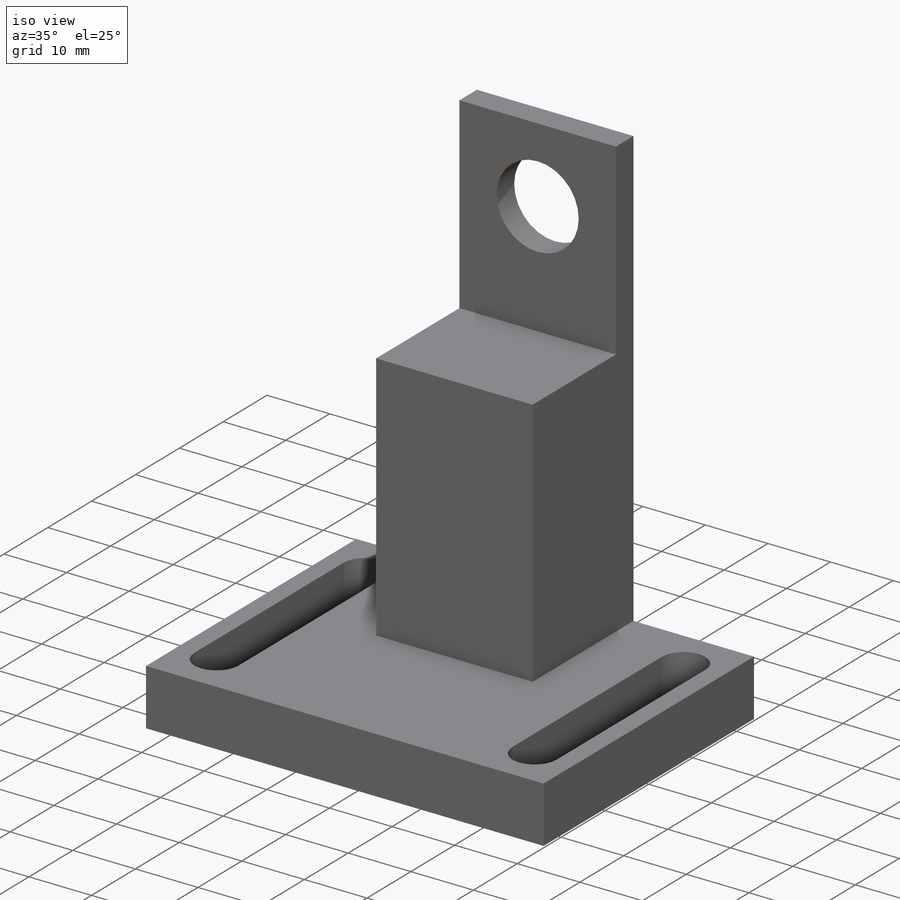
[diagram: iso view]
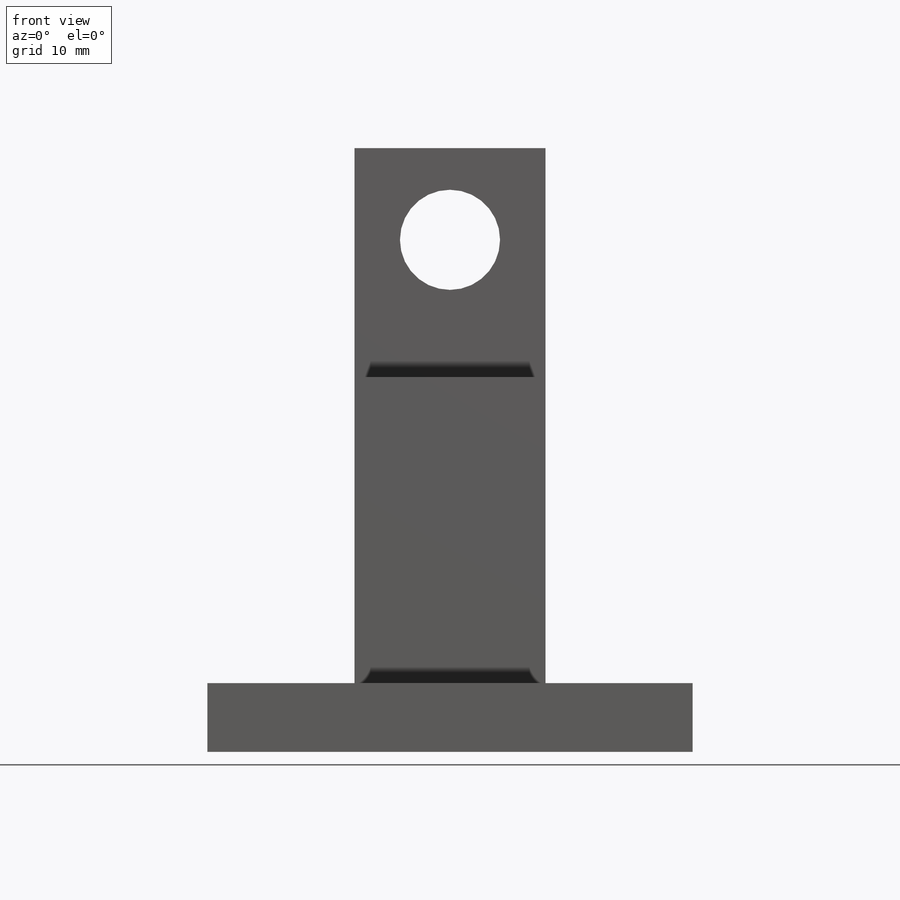
[diagram: front view]
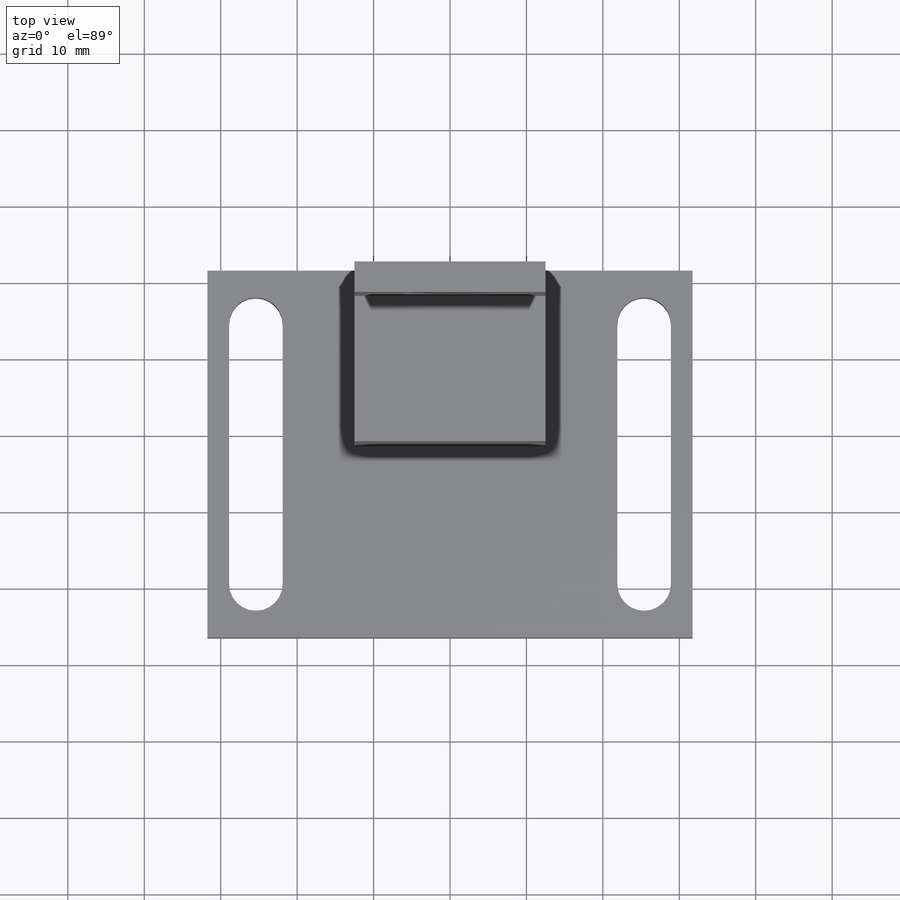
[diagram: top view]
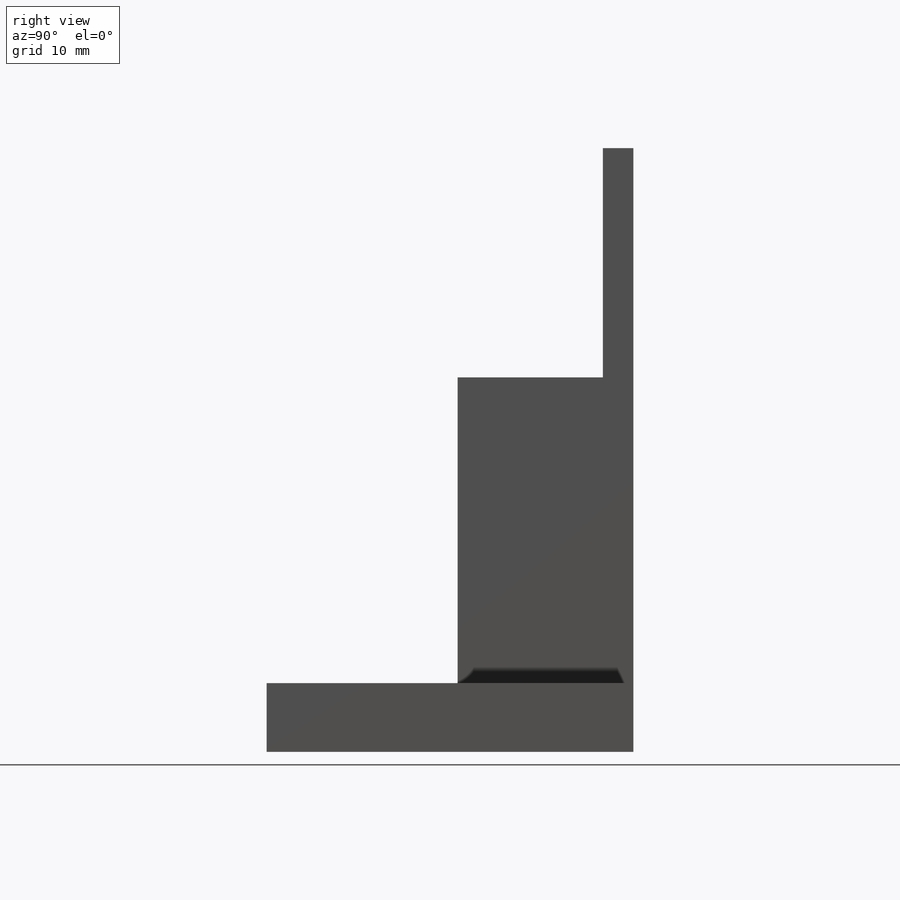
[diagram: right view]
SOLIDWORKS PART (.sldprt)
format: sldprt  version: not decoded by parser v0  size: 198,656 bytes
history: native  units: mm
features: sketch x4, extrude x2, cut_extrude x2, material x1 (+11 scaffold rows collapsed)
feature tree (20):
  scaffold x11  (default folders/planes/origin — collapsed)
  material  "AISI 304"
  sketch  "Sketch1"  dims[c1.D1=13.1mm c1.D2=12.0mm c1.D3=67.0mm c1.D4=10.0mm c1.D5=63.5mm c2.D4=25.0mm c2.D5=63.5mm c2.D6=9.0mm]
  extrude  "Boss-Extrude1"  Depth=23mm
  sketch  "Sketch9"  dims[D1=4.0mm D2=18.0mm]
  cut_extrude  "Cut-Extrude4"  [1 undecoded]
  sketch  "Sketch12"
  extrude  "Boss-Extrude2"  Depth=25mm
  sketch  "Sketch11"  dims[c1.D1=7.0mm c1.D2=50.8mm c1.D3=7.0mm c2.D1=7.0mm]
  cut_extrude  "Cut-Extrude5"  [1 undecoded]
decode coverage: 5 of 8 modeling features carry decoded parameters
note: 2 parameter values undecoded
note: suppression state not decoded; provenance and decode notes live in map.json
